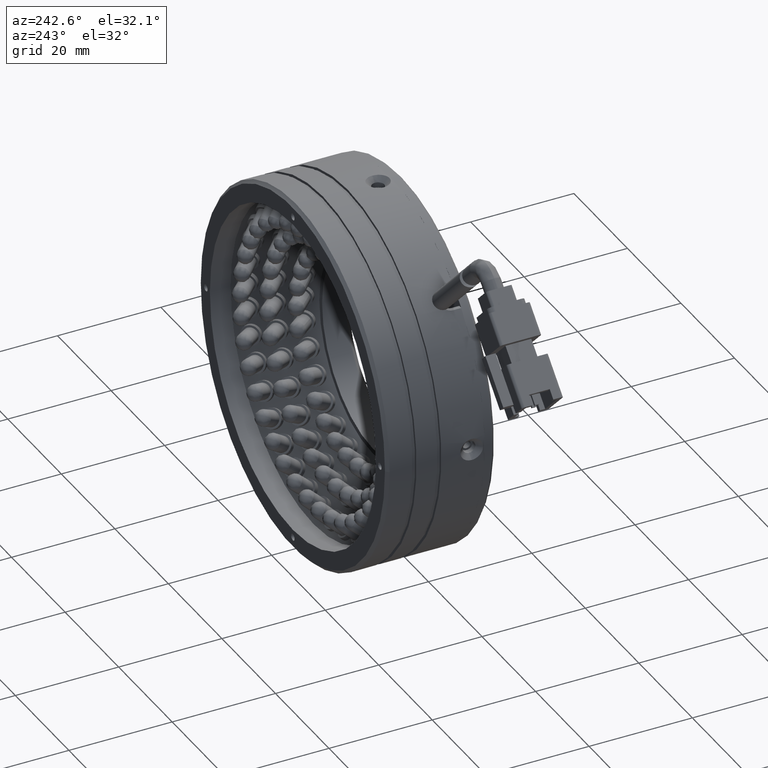
[diagram: clean part render]
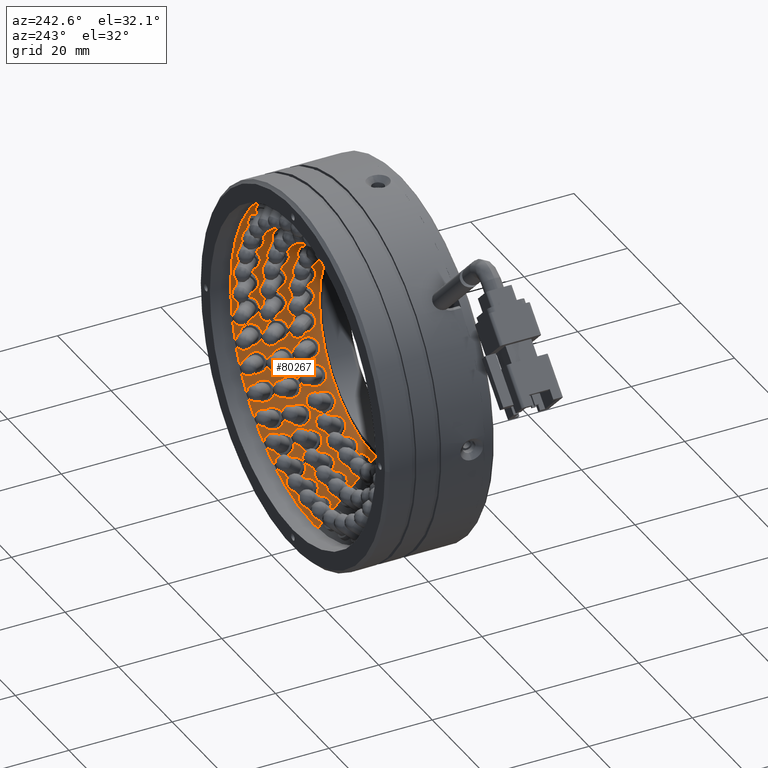
[diagram: same view with one face highlighted and labeled with its STEP entity id]
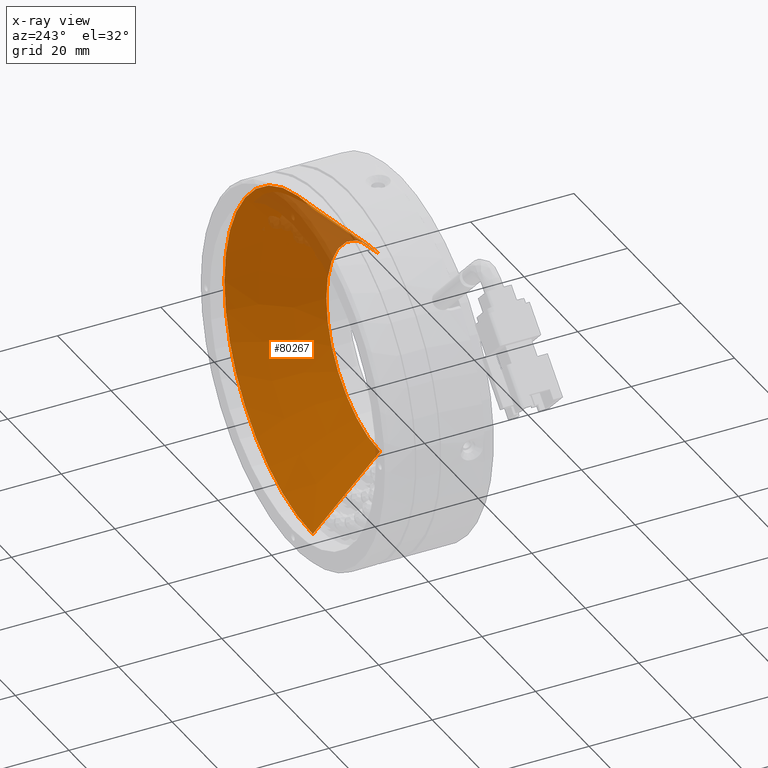
[diagram: x-ray of the same camera — body ghosted, the highlighted face saturated]
A machine part, auxiliary view. The second image highlights one B-rep face of the part: STEP entity #80267.
The next image is the same camera in x-ray: the body ghosted, the highlighted face saturated — about 10% of this face is hidden behind the body in this view.
In plain terms, the highlighted conical surface has half-angle 45 deg.
Its self-contained STEP definition (entity closure, byte-faithful):
#777 = AXIS2_PLACEMENT_3D ( 'NONE', #23935, #70482, #57603 ) ;
#825 = VECTOR ( 'NONE', #43708, 999.9999999999998900 ) ;
#3710 = VERTEX_POINT ( 'NONE', #84780 ) ;
#11902 = AXIS2_PLACEMENT_3D ( 'NONE', #78799, #38627, #85500 ) ;
#12573 = CIRCLE ( 'NONE', #11902, 20.00000000000001100 ) ;
#12832 = DIRECTION ( 'NONE',  ( 8.659560562354884800E-017, 0.7071067811865515700, -0.7071067811865435800 ) ) ;
#13514 = EDGE_LOOP ( 'NONE', ( #29071, #47532, #24847, #50348, #40014 ) ) ;
#16429 = FACE_OUTER_BOUND ( 'NONE', #13514, .T. ) ;
#19956 = CARTESIAN_POINT ( 'NONE',  ( 30.28392897960850800, 13.44869269134615100, 0.0000000000000000000 ) ) ;
#21364 = EDGE_CURVE ( 'NONE', #41958, #53441, #28503, .T. ) ;
#22909 = CARTESIAN_POINT ( 'NONE',  ( -2.716071020391494600, 13.44869269134615100, 0.0000000000000000000 ) ) ;
#23935 = CARTESIAN_POINT ( 'NONE',  ( -2.716071020391494600, 13.44869269134614600, 0.0000000000000000000 ) ) ;
#24847 = ORIENTED_EDGE ( 'NONE', *, *, #44133, .T. ) ;
#28364 = DIRECTION ( 'NONE',  ( 0.0000000000000000000, -1.000000000000000000, 0.0000000000000000000 ) ) ;
#28503 = LINE ( 'NONE', #79627, #62055 ) ;
#29071 = ORIENTED_EDGE ( 'NONE', *, *, #21364, .F. ) ;
#29635 = DIRECTION ( 'NONE',  ( 0.0000000000000000000, -1.051347561198065000E-016, -1.000000000000000000 ) ) ;
#33156 = EDGE_CURVE ( 'NONE', #65478, #3710, #51921, .T. ) ;
#35468 = EDGE_CURVE ( 'NONE', #53441, #65478, #57920, .T. ) ;
#36506 = LINE ( 'NONE', #77067, #825 ) ;
#38627 = DIRECTION ( 'NONE',  ( 0.0000000000000000000, -1.000000000000000000, 0.0000000000000000000 ) ) ;
#40014 = ORIENTED_EDGE ( 'NONE', *, *, #35468, .F. ) ;
#41700 = CARTESIAN_POINT ( 'NONE',  ( -2.716071020391494600, 0.4486926913459983200, 20.00000000000001100 ) ) ;
#41958 = VERTEX_POINT ( 'NONE', #42128 ) ;
#42128 = CARTESIAN_POINT ( 'NONE',  ( -2.716071020391491100, 0.4486926913459983200, -20.00000000000001100 ) ) ;
#43708 = DIRECTION ( 'NONE',  ( 0.0000000000000000000, 0.7071067811865515700, 0.7071067811865435800 ) ) ;
#44133 = EDGE_CURVE ( 'NONE', #56772, #3710, #36506, .T. ) ;
#46779 = EDGE_CURVE ( 'NONE', #41958, #56772, #12573, .T. ) ;
#47532 = ORIENTED_EDGE ( 'NONE', *, *, #46779, .T. ) ;
#50348 = ORIENTED_EDGE ( 'NONE', *, *, #33156, .F. ) ;
#51921 = CIRCLE ( 'NONE', #72925, 33.00000000000000000 ) ;
#53441 = VERTEX_POINT ( 'NONE', #63417 ) ;
#56772 = VERTEX_POINT ( 'NONE', #41700 ) ;
#57603 = DIRECTION ( 'NONE',  ( 0.0000000000000000000, 0.0000000000000000000, 1.000000000000000000 ) ) ;
#57920 = CIRCLE ( 'NONE', #68077, 33.00000000000000000 ) ;
#62055 = VECTOR ( 'NONE', #12832, 999.9999999999998900 ) ;
#63417 = CARTESIAN_POINT ( 'NONE',  ( -2.716071020391490600, 13.44869269134615100, -33.00000000000000700 ) ) ;
#65478 = VERTEX_POINT ( 'NONE', #19956 ) ;
#68077 = AXIS2_PLACEMENT_3D ( 'NONE', #22909, #69750, #29635 ) ;
#68471 = CARTESIAN_POINT ( 'NONE',  ( -2.716071020391494600, 13.44869269134615100, 0.0000000000000000000 ) ) ;
#69750 = DIRECTION ( 'NONE',  ( 0.0000000000000000000, -1.000000000000000000, 0.0000000000000000000 ) ) ;
#70482 = DIRECTION ( 'NONE',  ( -0.0000000000000000000, 1.000000000000000000, 0.0000000000000000000 ) ) ;
#72925 = AXIS2_PLACEMENT_3D ( 'NONE', #68471, #28364, #75225 ) ;
#75225 = DIRECTION ( 'NONE',  ( 0.0000000000000000000, -1.051347561198065000E-016, -1.000000000000000000 ) ) ;
#77067 = CARTESIAN_POINT ( 'NONE',  ( -2.716071020391494600, 13.44869269134614600, 33.00000000000000000 ) ) ;
#77248 = CONICAL_SURFACE ( 'NONE', #777, 33.00000000000000000, 0.7853981633974426200 ) ;
#78799 = CARTESIAN_POINT ( 'NONE',  ( -2.716071020391494600, 0.4486926913459983200, 0.0000000000000000000 ) ) ;
#79627 = CARTESIAN_POINT ( 'NONE',  ( -2.716071020391490600, 13.44869269134614600, -33.00000000000000000 ) ) ;
#80267 = ADVANCED_FACE ( 'NONE', ( #16429 ), #77248, .F. ) ;
#84780 = CARTESIAN_POINT ( 'NONE',  ( -2.716071020391494600, 13.44869269134615100, 33.00000000000000700 ) ) ;
#85500 = DIRECTION ( 'NONE',  ( 0.0000000000000000000, 8.673617379884030500E-017, -1.000000000000000000 ) ) ;